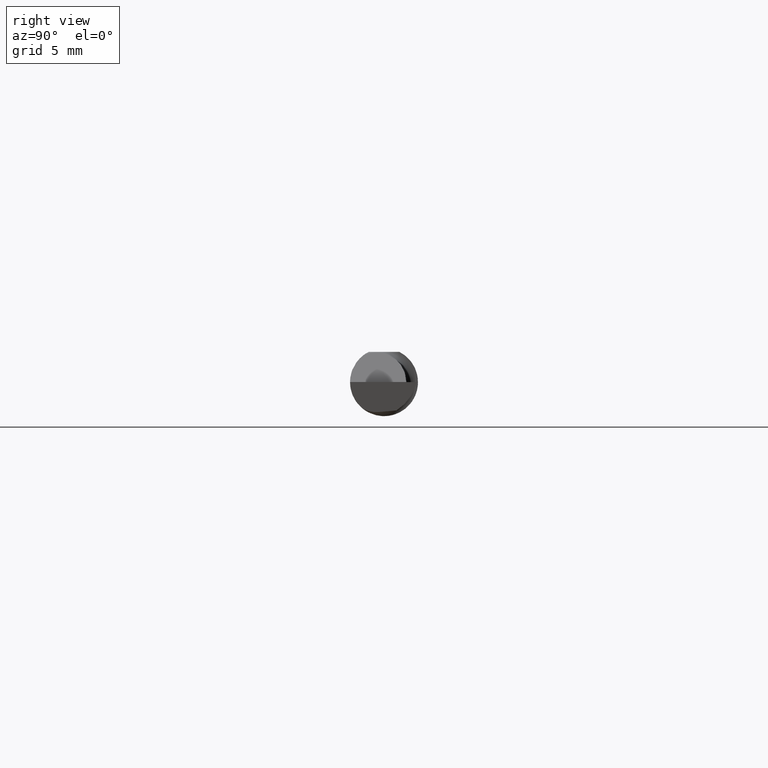
[diagram: clean part render]
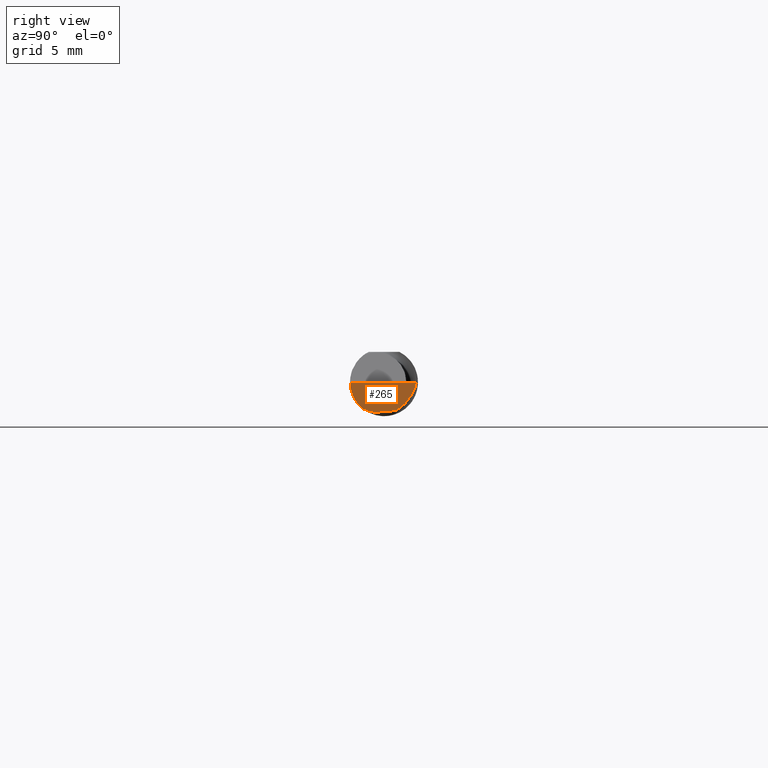
[diagram: same view with one face highlighted and labeled with its STEP entity id]
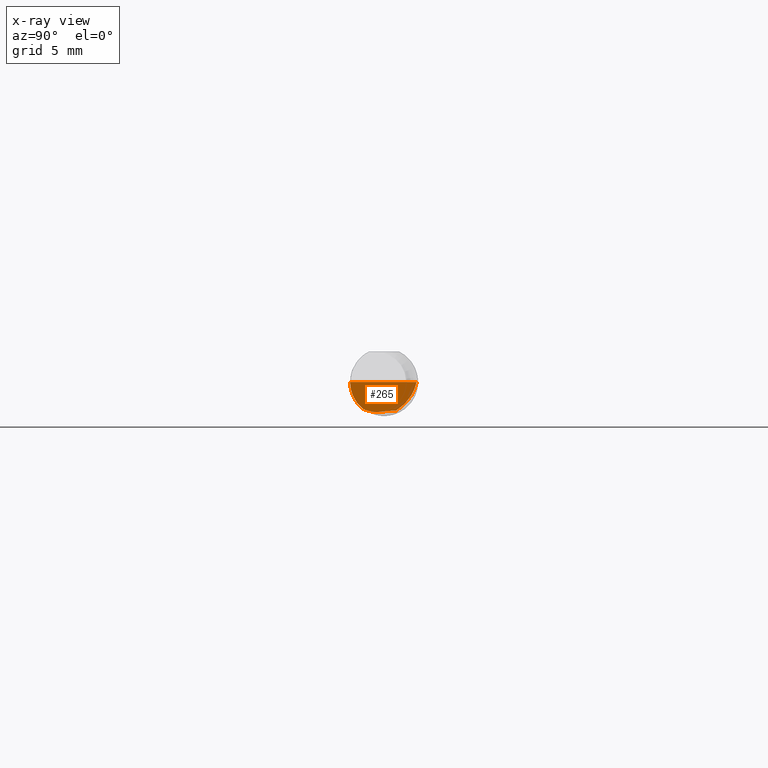
[diagram: x-ray of the same camera — body ghosted, the highlighted face saturated]
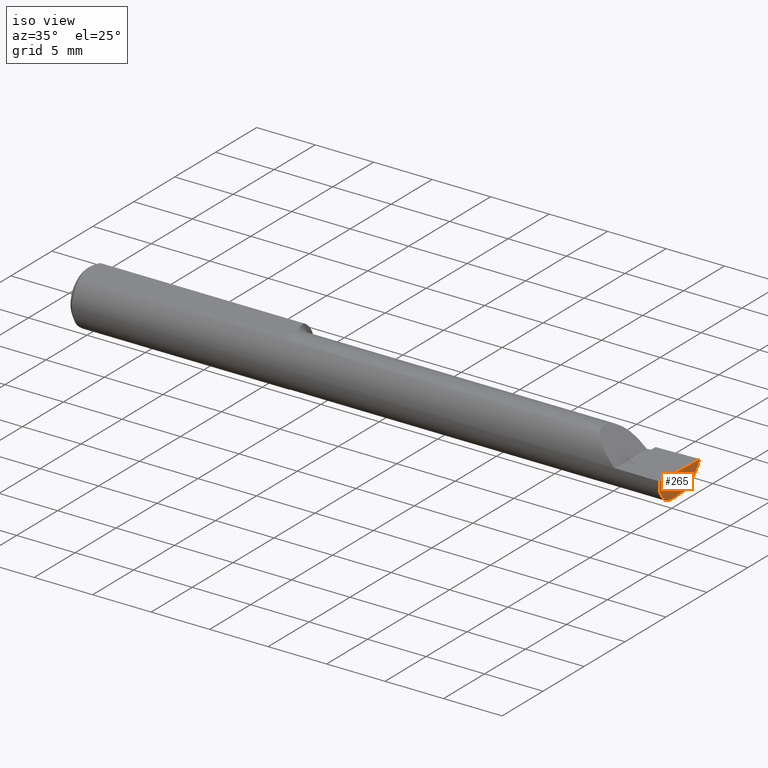
[diagram: same view with one face highlighted and labeled with its STEP entity id]
A machine part, right view. The second image highlights one B-rep face of the part: STEP entity #265.
The next image is the same camera in x-ray: the body ghosted, the highlighted face saturated — about 0% of this face is hidden behind the body in this view.
A second angle (iso view) of the same face is appended — the face is thin or edge-on in the first view.
In plain terms, the highlighted planar face has unit normal (-0.992, 0.0344, 0.1219).
Its self-contained STEP definition (entity closure, byte-faithful):
#10 = CARTESIAN_POINT ( 'NONE',  ( 1.986324320446372305, -0.01381836679759350546, -0.08208644312275988064 ) ) ;
#21 = CARTESIAN_POINT ( 'NONE',  ( 1.985638364069036266, -0.02892578711483840409, -0.08340817113563980811 ) ) ;
#24 = CARTESIAN_POINT ( 'NONE',  ( 1.988502654630791344, 0.03415700188930223535, -0.07788914223418023919 ) ) ;
#30 = PLANE ( 'NONE',  #448 ) ;
#34 = CARTESIAN_POINT ( 'NONE',  ( 1.990029385046014232, -0.09360000000000003040, -0.02942396326758906638 ) ) ;
#47 = ORIENTED_EDGE ( 'NONE', *, *, #149, .T. ) ;
#68 = CARTESIAN_POINT ( 'NONE',  ( 1.985817582123950320, -0.05743333333333396767, -0.07390786306085539437 ) ) ;
#83 = EDGE_CURVE ( 'NONE', #278, #625, #197, .T. ) ;
#103 = DIRECTION ( 'NONE',  ( -0.9919506264397697226, 0.03437759245049861606, 0.1218693392246628648 ) ) ;
#123 = CARTESIAN_POINT ( 'NONE',  ( 2.000000000000000444, 0.08978918869558996652, 4.097771990496394828E-16 ) ) ;
#130 = CARTESIAN_POINT ( 'NONE',  ( 1.985817582123950320, -0.05743333333333396767, -0.07390786306085539437 ) ) ;
#144 = ORIENTED_EDGE ( 'NONE', *, *, #198, .F. ) ;
#149 = EDGE_CURVE ( 'NONE', #463, #380, #431, .T. ) ;
#164 = VECTOR ( 'NONE', #614, 39.37007874015748854 ) ;
#197 =( BOUNDED_CURVE ( )  B_SPLINE_CURVE ( 3, ( #24, #268, #214, #123 ),
 .UNSPECIFIED., .F., .T. ) 
 B_SPLINE_CURVE_WITH_KNOTS ( ( 4, 4 ),
 ( 3.960321937159471783, 4.773880858322181453 ),
 .UNSPECIFIED. ) 
 CURVE ( )  GEOMETRIC_REPRESENTATION_ITEM ( )  RATIONAL_B_SPLINE_CURVE ( ( 1.000000000000000000, 0.9455998676827520599, 0.9455998676827520599, 1.000000000000000000 ) ) 
 REPRESENTATION_ITEM ( '' )  );
#198 = EDGE_CURVE ( 'NONE', #463, #533, #492, .T. ) ;
#214 = CARTESIAN_POINT ( 'NONE',  ( 1.995700996757002965, 0.08264169502808201007, -0.03297536001410257545 ) ) ;
#219 = CARTESIAN_POINT ( 'NONE',  ( 1.959014883581128075, 0.09122042049864560742, -0.3340004505562900183 ) ) ;
#221 = CARTESIAN_POINT ( 'NONE',  ( 1.993644362309209273, -0.09359999999999998876, -1.868634782302818344E-17 ) ) ;
#256 = CARTESIAN_POINT ( 'NONE',  ( 1.985465187176708168, -0.04383112193845223326, -0.08061315639902359720 ) ) ;
#265 = ADVANCED_FACE ( 'NONE', ( #457 ), #30, .F. ) ;
#268 = CARTESIAN_POINT ( 'NONE',  ( 1.991648068465035282, 0.06303079732967827031, -0.06043205528099161034 ) ) ;
#278 = VERTEX_POINT ( 'NONE', #428 ) ;
#286 = DIRECTION ( 'NONE',  ( 0.04518627981622180823, 0.9951771633164323561, 0.08706671999006802831 ) ) ;
#289 = CARTESIAN_POINT ( 'NONE',  ( 1.999939969396823392, 0.08805703149137224239, -1.868634782302818344E-17 ) ) ;
#309 = VECTOR ( 'NONE', #286, 39.37007874015748854 ) ;
#317 = CARTESIAN_POINT ( 'NONE',  ( 1.987230551035694903, -0.08066690435778495205, -0.05585320183932528798 ) ) ;
#352 = CARTESIAN_POINT ( 'NONE',  ( 1.986324320446372305, -0.01381836679759350546, -0.08208644312275988064 ) ) ;
#354 = LINE ( 'NONE', #557, #309 ) ;
#361 = CARTESIAN_POINT ( 'NONE',  ( 1.985817582123950320, -0.05743333333333396767, -0.07390786306085539437 ) ) ;
#364 = CARTESIAN_POINT ( 'NONE',  ( 1.993644362309209273, -0.09359999999999998876, -1.868634782302818344E-17 ) ) ;
#369 = EDGE_LOOP ( 'NONE', ( #47, #547, #435, #382, #144 ) ) ;
#378 = CARTESIAN_POINT ( 'NONE',  ( 2.000000000000000444, 0.08978918869558996652, 4.097771990496394828E-16 ) ) ;
#380 = VERTEX_POINT ( 'NONE', #10 ) ;
#382 = ORIENTED_EDGE ( 'NONE', *, *, #436, .F. ) ;
#408 = EDGE_CURVE ( 'NONE', #380, #278, #354, .T. ) ;
#428 = CARTESIAN_POINT ( 'NONE',  ( 1.988502654630791344, 0.03415700188930223535, -0.07788914223418023919 ) ) ;
#431 =( BOUNDED_CURVE ( )  B_SPLINE_CURVE ( 3, ( #68, #256, #21, #352 ),
 .UNSPECIFIED., .F., .F. ) 
 B_SPLINE_CURVE_WITH_KNOTS ( ( 4, 4 ),
 ( 6.100130346660547431, 6.645393451497628057 ),
 .UNSPECIFIED. ) 
 CURVE ( )  GEOMETRIC_REPRESENTATION_ITEM ( )  RATIONAL_B_SPLINE_CURVE ( ( 1.000000000000000000, 0.9753770948873830005, 0.9753770948873830005, 1.000000000000000000 ) ) 
 REPRESENTATION_ITEM ( '' )  );
#435 = ORIENTED_EDGE ( 'NONE', *, *, #83, .T. ) ;
#436 = EDGE_CURVE ( 'NONE', #533, #625, #531, .T. ) ;
#448 = AXIS2_PLACEMENT_3D ( 'NONE', #219, #103, #544 ) ;
#457 = FACE_OUTER_BOUND ( 'NONE', #369, .T. ) ;
#463 = VERTEX_POINT ( 'NONE', #361 ) ;
#492 =( BOUNDED_CURVE ( )  B_SPLINE_CURVE ( 3, ( #130, #317, #34, #221 ),
 .UNSPECIFIED., .F., .T. ) 
 B_SPLINE_CURVE_WITH_KNOTS ( ( 4, 4 ),
 ( 0.3856751006538640669, 1.295854645076564893 ),
 .UNSPECIFIED. ) 
 CURVE ( )  GEOMETRIC_REPRESENTATION_ITEM ( )  RATIONAL_B_SPLINE_CURVE ( ( 1.000000000000000000, 0.9321477153702222296, 0.9321477153702222296, 1.000000000000000000 ) ) 
 REPRESENTATION_ITEM ( '' )  );
#531 = LINE ( 'NONE', #289, #164 ) ;
#533 = VERTEX_POINT ( 'NONE', #364 ) ;
#544 = DIRECTION ( 'NONE',  ( 0.1219414168599299853, 0.000000000000000000, 0.9925372994775525370 ) ) ;
#547 = ORIENTED_EDGE ( 'NONE', *, *, #408, .T. ) ;
#557 = CARTESIAN_POINT ( 'NONE',  ( 1.986352243447293553, -0.01320339400140365695, -0.08203263997471643698 ) ) ;
#614 = DIRECTION ( 'NONE',  ( 0.03463576215158526567, 0.9994000019912840926, 0.000000000000000000 ) ) ;
#625 = VERTEX_POINT ( 'NONE', #378 ) ;